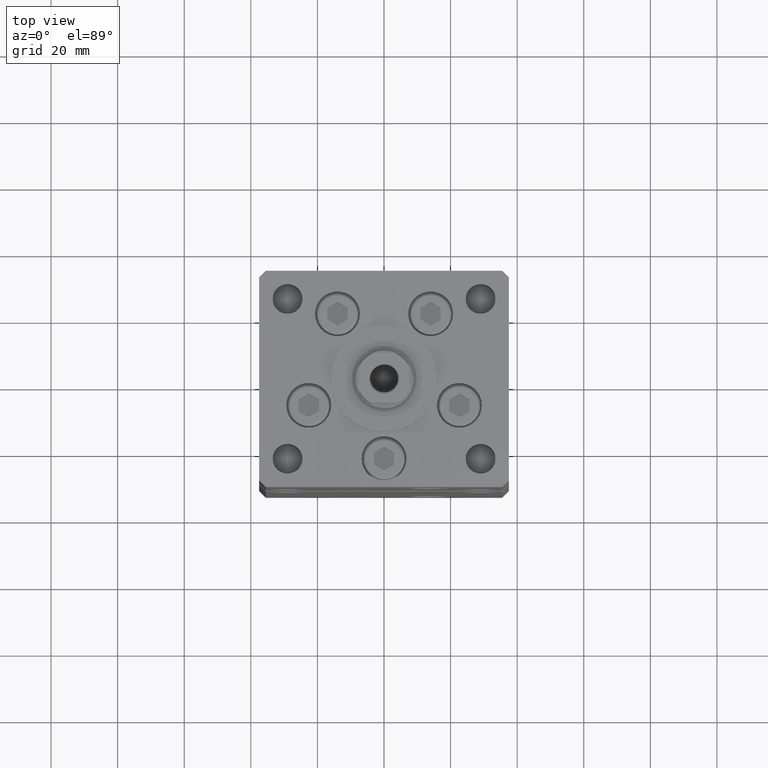
[diagram: clean part render]
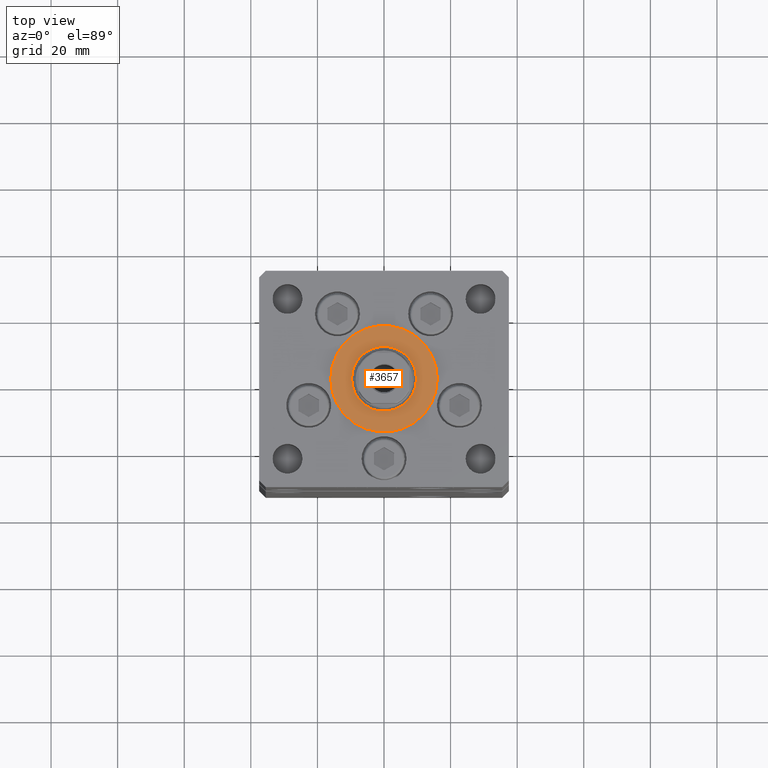
[diagram: same view with one face highlighted and labeled with its STEP entity id]
A machine part, top view. The second image highlights one B-rep face of the part: STEP entity #3657.
In plain terms, the highlighted planar face has unit normal (0, 0, 1).
Its self-contained STEP definition (entity closure, byte-faithful):
#916 = EDGE_CURVE ( 'NONE', #30385, #19164, #16516, .T. ) ;
#1284 = DIRECTION ( 'NONE',  ( 0.000000000000000000, 0.000000000000000000, 1.000000000000000000 ) ) ;
#1595 = ORIENTED_EDGE ( 'NONE', *, *, #31965, .F. ) ;
#3220 = CARTESIAN_POINT ( 'NONE',  ( 0.000000000000000000, -6.938893903907228378E-15, 2.000000000000000000 ) ) ;
#3657 = ADVANCED_FACE ( 'NONE', ( #44456, #7637 ), #7899, .T. ) ;
#3672 = CIRCLE ( 'NONE', #33723, 9.750000000000001776 ) ;
#4670 = DIRECTION ( 'NONE',  ( 1.000000000000000000, 0.000000000000000000, 0.000000000000000000 ) ) ;
#7637 = FACE_OUTER_BOUND ( 'NONE', #9386, .T. ) ;
#7899 = PLANE ( 'NONE',  #50062 ) ;
#8447 = CARTESIAN_POINT ( 'NONE',  ( 9.750000000000001776, -6.938893903907228378E-15, 2.000000000000000000 ) ) ;
#8707 = CARTESIAN_POINT ( 'NONE',  ( 0.000000000000000000, -6.938893903907228378E-15, 2.000000000000000000 ) ) ;
#9386 = EDGE_LOOP ( 'NONE', ( #26568, #23745 ) ) ;
#15844 = DIRECTION ( 'NONE',  ( 1.000000000000000000, 0.000000000000000000, 0.000000000000000000 ) ) ;
#16516 = CIRCLE ( 'NONE', #26816, 16.00000000000000355 ) ;
#17338 = CARTESIAN_POINT ( 'NONE',  ( -16.00000000000000355, -6.938893903907228378E-15, 2.000000000000000000 ) ) ;
#17519 = CIRCLE ( 'NONE', #38971, 16.00000000000000355 ) ;
#17687 = DIRECTION ( 'NONE',  ( 1.000000000000000000, 0.000000000000000000, 0.000000000000000000 ) ) ;
#18820 = AXIS2_PLACEMENT_3D ( 'NONE', #8707, #26175, #4670 ) ;
#18925 = CARTESIAN_POINT ( 'NONE',  ( -9.750000000000001776, -5.744863274738558317E-15, 2.000000000000000000 ) ) ;
#19128 = VERTEX_POINT ( 'NONE', #18925 ) ;
#19164 = VERTEX_POINT ( 'NONE', #25367 ) ;
#22083 = CARTESIAN_POINT ( 'NONE',  ( 0.000000000000000000, -6.938893903907228378E-15, 2.000000000000000000 ) ) ;
#23391 = DIRECTION ( 'NONE',  ( 0.000000000000000000, 0.000000000000000000, 1.000000000000000000 ) ) ;
#23745 = ORIENTED_EDGE ( 'NONE', *, *, #35396, .T. ) ;
#24310 = DIRECTION ( 'NONE',  ( 1.000000000000000000, 0.000000000000000000, -0.000000000000000000 ) ) ;
#25367 = CARTESIAN_POINT ( 'NONE',  ( 16.00000000000000355, -4.979459025271462852E-15, 2.000000000000000000 ) ) ;
#26175 = DIRECTION ( 'NONE',  ( 0.000000000000000000, 0.000000000000000000, 1.000000000000000000 ) ) ;
#26387 = DIRECTION ( 'NONE',  ( 1.000000000000000000, 0.000000000000000000, 0.000000000000000000 ) ) ;
#26568 = ORIENTED_EDGE ( 'NONE', *, *, #916, .T. ) ;
#26816 = AXIS2_PLACEMENT_3D ( 'NONE', #3220, #23391, #15844 ) ;
#27540 = CARTESIAN_POINT ( 'NONE',  ( 0.000000000000000000, -6.938893903907228378E-15, 2.000000000000000000 ) ) ;
#29017 = CARTESIAN_POINT ( 'NONE',  ( 0.000000000000000000, -6.938893903907228378E-15, 2.000000000000000000 ) ) ;
#30385 = VERTEX_POINT ( 'NONE', #17338 ) ;
#31965 = EDGE_CURVE ( 'NONE', #19128, #44186, #3672, .T. ) ;
#33723 = AXIS2_PLACEMENT_3D ( 'NONE', #22083, #50581, #26387 ) ;
#35396 = EDGE_CURVE ( 'NONE', #19164, #30385, #17519, .T. ) ;
#35846 = ORIENTED_EDGE ( 'NONE', *, *, #53160, .F. ) ;
#37960 = EDGE_LOOP ( 'NONE', ( #35846, #1595 ) ) ;
#38971 = AXIS2_PLACEMENT_3D ( 'NONE', #29017, #1284, #17687 ) ;
#44186 = VERTEX_POINT ( 'NONE', #8447 ) ;
#44456 = FACE_BOUND ( 'NONE', #37960, .T. ) ;
#50062 = AXIS2_PLACEMENT_3D ( 'NONE', #27540, #52794, #24310 ) ;
#50581 = DIRECTION ( 'NONE',  ( 0.000000000000000000, 0.000000000000000000, 1.000000000000000000 ) ) ;
#52794 = DIRECTION ( 'NONE',  ( 0.000000000000000000, 0.000000000000000000, 1.000000000000000000 ) ) ;
#53143 = CIRCLE ( 'NONE', #18820, 9.750000000000001776 ) ;
#53160 = EDGE_CURVE ( 'NONE', #44186, #19128, #53143, .T. ) ;